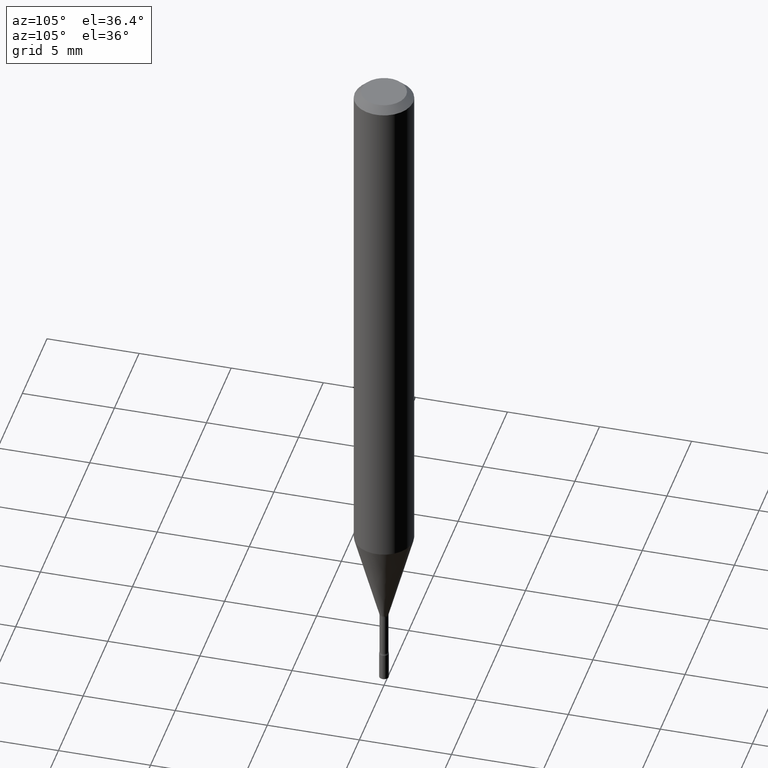
[diagram: clean part render]
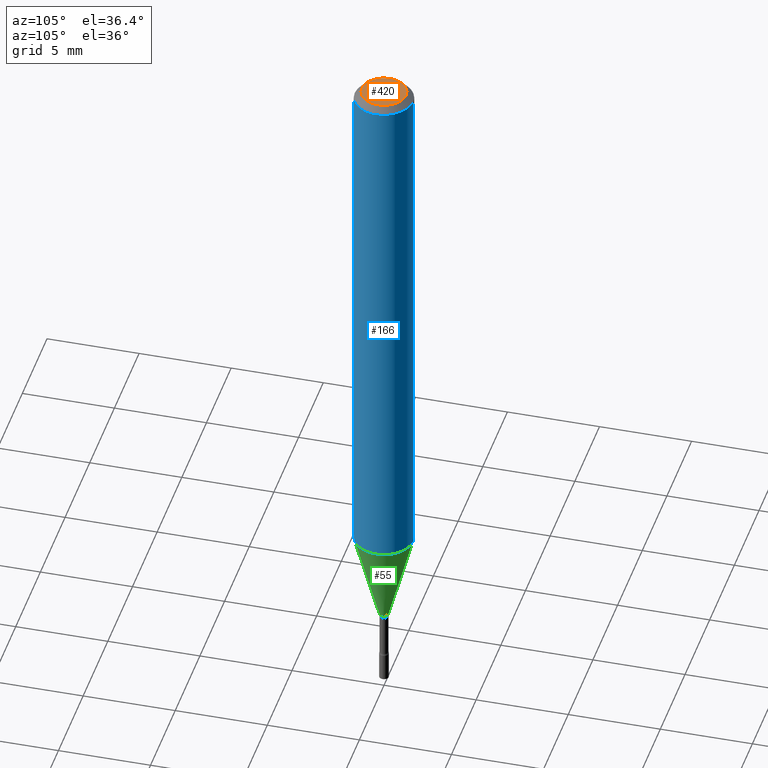
[diagram: same view with three faces highlighted in distinct colors, each labeled with its STEP entity id]
A machine part, auxiliary view with three faces highlighted in distinct colors.
Their STEP definitions:

[orange] entity #420 — the highlighted planar face has unit normal (0, -0, -1).
#23 = DIRECTION ( 'NONE',  ( -6.982962677686266711E-15, -1.000000000000000000, 3.491625398875051946E-15 ) ) ;
#42 = ORIENTED_EDGE ( 'NONE', *, *, #304, .T. ) ;
#63 = AXIS2_PLACEMENT_3D ( 'NONE', #263, #493, #23 ) ;
#73 = FACE_OUTER_BOUND ( 'NONE', #414, .T. ) ;
#105 = VERTEX_POINT ( 'NONE', #453 ) ;
#123 = PLANE ( 'NONE',  #162 ) ;
#136 = CARTESIAN_POINT ( 'NONE',  ( -3.773273898774340269E-16, -0.04749999999999999362, 1.369451383702114461E-16 ) ) ;
#162 = AXIS2_PLACEMENT_3D ( 'NONE', #506, #321, #164 ) ;
#164 = DIRECTION ( 'NONE',  ( 6.982962677686265922E-15, 1.000000000000000000, -3.491625398875051552E-15 ) ) ;
#180 = AXIS2_PLACEMENT_3D ( 'NONE', #279, #199, #354 ) ;
#182 = VERTEX_POINT ( 'NONE', #136 ) ;
#199 = DIRECTION ( 'NONE',  ( -2.445368209602522272E-29, 3.491625398875051552E-15, 1.000000000000000000 ) ) ;
#201 = CIRCLE ( 'NONE', #63, 0.04749999999999999362 ) ;
#263 = CARTESIAN_POINT ( 'NONE',  ( 7.068842530673074926E-46, -1.009326531024059951E-31, -2.890706807635348289E-17 ) ) ;
#279 = CARTESIAN_POINT ( 'NONE',  ( 7.068842530673074926E-46, -1.009326531024059951E-31, -2.890706807635348289E-17 ) ) ;
#304 = EDGE_CURVE ( 'NONE', #105, #182, #201, .T. ) ;
#321 = DIRECTION ( 'NONE',  ( 2.445368209602521711E-29, -3.491625398875051552E-15, -1.000000000000000000 ) ) ;
#354 = DIRECTION ( 'NONE',  ( -6.982962677686266711E-15, -1.000000000000000000, 3.491625398875051946E-15 ) ) ;
#397 = ORIENTED_EDGE ( 'NONE', *, *, #504, .T. ) ;
#414 = EDGE_LOOP ( 'NONE', ( #42, #397 ) ) ;
#420 = ADVANCED_FACE ( 'NONE', ( #73 ), #123, .F. ) ;
#449 = CIRCLE ( 'NONE', #180, 0.04749999999999999362 ) ;
#453 = CARTESIAN_POINT ( 'NONE',  ( 3.840629472727447874E-16, 0.04749999999999999362, -1.947592745229184365E-16 ) ) ;
#493 = DIRECTION ( 'NONE',  ( -2.445368209602522272E-29, 3.491625398875051552E-15, 1.000000000000000000 ) ) ;
#504 = EDGE_CURVE ( 'NONE', #182, #105, #449, .T. ) ;
#506 = CARTESIAN_POINT ( 'NONE',  ( 3.316907271900976096E-16, 0.04749999999999999362, -1.803057404847416581E-16 ) ) ;

[blue] entity #166 — the highlighted cylindrical surface (edge-blend (fillet) strip) has radius 1.5875 mm, axis along (-0, 0, 1).
#2 = EDGE_CURVE ( 'NONE', #483, #94, #250, .T. ) ;
#3 = FACE_OUTER_BOUND ( 'NONE', #416, .T. ) ;
#94 = VERTEX_POINT ( 'NONE', #97 ) ;
#97 = CARTESIAN_POINT ( 'NONE',  ( 4.440892098500906207E-16, 0.06249999999999993755, -0.01500000000000024751 ) ) ;
#100 = DIRECTION ( 'NONE',  ( -6.982962677686265922E-15, -1.000000000000000000, 3.483106191921935554E-15 ) ) ;
#116 = EDGE_CURVE ( 'NONE', #171, #94, #255, .T. ) ;
#141 = DIRECTION ( 'NONE',  ( -2.445368209602522272E-29, 3.491625398875051552E-15, 1.000000000000000000 ) ) ;
#166 = ADVANCED_FACE ( 'NONE', ( #3 ), #484, .T. ) ;
#171 = VERTEX_POINT ( 'NONE', #372 ) ;
#174 = VERTEX_POINT ( 'NONE', #447 ) ;
#176 = ORIENTED_EDGE ( 'NONE', *, *, #2, .F. ) ;
#205 = CARTESIAN_POINT ( 'NONE',  ( -4.364351673553916201E-16, -0.06250000000000000000, 2.182265874296907220E-16 ) ) ;
#217 = DIRECTION ( 'NONE',  ( -6.982962677686265922E-15, -1.000000000000000000, 3.491625398875051552E-15 ) ) ;
#238 = DIRECTION ( 'NONE',  ( -2.445368209602522272E-29, 3.491625398875051552E-15, 1.000000000000000000 ) ) ;
#243 = ORIENTED_EDGE ( 'NONE', *, *, #116, .T. ) ;
#248 = DIRECTION ( 'NONE',  ( -2.445368209602522272E-29, 3.491625398875051552E-15, 1.000000000000000000 ) ) ;
#250 = CIRCLE ( 'NONE', #353, 0.06250000000000000000 ) ;
#255 = LINE ( 'NONE', #330, #423 ) ;
#262 = ORIENTED_EDGE ( 'NONE', *, *, #281, .T. ) ;
#281 = EDGE_CURVE ( 'NONE', #174, #171, #292, .T. ) ;
#292 = CIRCLE ( 'NONE', #308, 0.06250000000000000000 ) ;
#308 = AXIS2_PLACEMENT_3D ( 'NONE', #495, #500, #345 ) ;
#317 = VECTOR ( 'NONE', #238, 39.37007874015748143 ) ;
#330 = CARTESIAN_POINT ( 'NONE',  ( 4.440892098500625669E-16, 0.06250000000000000000, -2.182265874296907220E-16 ) ) ;
#345 = DIRECTION ( 'NONE',  ( -6.982962677686265922E-15, -1.000000000000000000, 4.370956789862821150E-15 ) ) ;
#353 = AXIS2_PLACEMENT_3D ( 'NONE', #492, #141, #100 ) ;
#358 = LINE ( 'NONE', #205, #317 ) ;
#372 = CARTESIAN_POINT ( 'NONE',  ( 4.440892098500904235E-16, 0.06249999999999601014, -1.141828102118093602 ) ) ;
#394 = CARTESIAN_POINT ( 'NONE',  ( -4.364351673553912750E-16, -0.06250000000000005551, -0.01499999999999981209 ) ) ;
#413 = CARTESIAN_POINT ( 'NONE',  ( 0.000000000000000000, 0.000000000000000000, 0.000000000000000000 ) ) ;
#416 = EDGE_LOOP ( 'NONE', ( #262, #243, #176, #424 ) ) ;
#423 = VECTOR ( 'NONE', #445, 39.37007874015748143 ) ;
#424 = ORIENTED_EDGE ( 'NONE', *, *, #491, .F. ) ;
#445 = DIRECTION ( 'NONE',  ( -2.445368209602522272E-29, 3.491625398875051552E-15, 1.000000000000000000 ) ) ;
#447 = CARTESIAN_POINT ( 'NONE',  ( -4.364351673553637635E-16, -0.06250000000000399680, -1.141828102118092936 ) ) ;
#483 = VERTEX_POINT ( 'NONE', #394 ) ;
#484 = CYLINDRICAL_SURFACE ( 'NONE', #496, 0.06250000000000000000 ) ;
#491 = EDGE_CURVE ( 'NONE', #174, #483, #358, .T. ) ;
#492 = CARTESIAN_POINT ( 'NONE',  ( 3.668052314403790151E-31, -5.237438098312587928E-17, -0.01500000000000003067 ) ) ;
#495 = CARTESIAN_POINT ( 'NONE',  ( 2.792190141750367588E-29, -3.986836002504830436E-15, -1.141828102118093380 ) ) ;
#496 = AXIS2_PLACEMENT_3D ( 'NONE', #413, #248, #217 ) ;
#500 = DIRECTION ( 'NONE',  ( -2.445368209602522272E-29, 3.491625398875051552E-15, 1.000000000000000000 ) ) ;

[green] entity #55 — the highlighted conical surface has half-angle 15 deg.
#12 = EDGE_CURVE ( 'NONE', #271, #313, #343, .T. ) ;
#17 = EDGE_LOOP ( 'NONE', ( #192, #326, #440, #382 ) ) ;
#18 = FACE_OUTER_BOUND ( 'NONE', #17, .T. ) ;
#28 = LINE ( 'NONE', #72, #301 ) ;
#55 = ADVANCED_FACE ( 'NONE', ( #18 ), #119, .T. ) ;
#61 = DIRECTION ( 'NONE',  ( -6.982962677686264344E-15, -1.000000000000000000, 0.000000000000000000 ) ) ;
#72 = CARTESIAN_POINT ( 'NONE',  ( -6.920892941966473990E-17, -0.009911112605668655554, -1.338092501787273347 ) ) ;
#103 = CARTESIAN_POINT ( 'NONE',  ( -6.920892941966473990E-17, -0.009911112605668655554, -1.338092501787273347 ) ) ;
#119 = CONICAL_SURFACE ( 'NONE', #518, 0.009911112605663983943, 0.2617993877991500740 ) ;
#148 = CARTESIAN_POINT ( 'NONE',  ( 7.042269065258173483E-17, 0.009911112605659312333, -1.338092501787273347 ) ) ;
#171 = VERTEX_POINT ( 'NONE', #372 ) ;
#174 = VERTEX_POINT ( 'NONE', #447 ) ;
#187 = DIRECTION ( 'NONE',  ( -2.445368209602522272E-29, 3.491625398875051552E-15, 1.000000000000000000 ) ) ;
#190 = CARTESIAN_POINT ( 'NONE',  ( 3.272128865378104178E-29, -4.672117765284703339E-15, -1.338092501787273347 ) ) ;
#192 = ORIENTED_EDGE ( 'NONE', *, *, #12, .T. ) ;
#259 = CARTESIAN_POINT ( 'NONE',  ( 3.272128865378104178E-29, -4.672117765284703339E-15, -1.338092501787273347 ) ) ;
#271 = VERTEX_POINT ( 'NONE', #103 ) ;
#281 = EDGE_CURVE ( 'NONE', #174, #171, #292, .T. ) ;
#292 = CIRCLE ( 'NONE', #308, 0.06250000000000000000 ) ;
#298 = DIRECTION ( 'NONE',  ( 1.839019923739598738E-15, 0.2588190451025247363, 0.9659258262890673130 ) ) ;
#300 = AXIS2_PLACEMENT_3D ( 'NONE', #259, #187, #340 ) ;
#301 = VECTOR ( 'NONE', #436, 39.37007874015748854 ) ;
#308 = AXIS2_PLACEMENT_3D ( 'NONE', #495, #500, #345 ) ;
#313 = VERTEX_POINT ( 'NONE', #390 ) ;
#326 = ORIENTED_EDGE ( 'NONE', *, *, #337, .T. ) ;
#337 = EDGE_CURVE ( 'NONE', #313, #171, #498, .T. ) ;
#340 = DIRECTION ( 'NONE',  ( -6.982962677686264344E-15, -1.000000000000000000, 0.000000000000000000 ) ) ;
#343 = CIRCLE ( 'NONE', #300, 0.009911112605663983943 ) ;
#345 = DIRECTION ( 'NONE',  ( -6.982962677686265922E-15, -1.000000000000000000, 4.370956789862821150E-15 ) ) ;
#372 = CARTESIAN_POINT ( 'NONE',  ( 4.440892098500904235E-16, 0.06249999999999601014, -1.141828102118093602 ) ) ;
#382 = ORIENTED_EDGE ( 'NONE', *, *, #472, .F. ) ;
#390 = CARTESIAN_POINT ( 'NONE',  ( 2.572559502513362641E-16, 0.009911112605659312333, -1.338092501787273347 ) ) ;
#399 = VECTOR ( 'NONE', #298, 39.37007874015748854 ) ;
#436 = DIRECTION ( 'NONE',  ( -1.807323732225328562E-15, -0.2588190451025179639, 0.9659258262890690894 ) ) ;
#440 = ORIENTED_EDGE ( 'NONE', *, *, #281, .F. ) ;
#447 = CARTESIAN_POINT ( 'NONE',  ( -4.364351673553637635E-16, -0.06250000000000399680, -1.141828102118092936 ) ) ;
#459 = DIRECTION ( 'NONE',  ( -2.445368209602522272E-29, 3.491625398875051552E-15, 1.000000000000000000 ) ) ;
#472 = EDGE_CURVE ( 'NONE', #271, #174, #28, .T. ) ;
#495 = CARTESIAN_POINT ( 'NONE',  ( 2.792190141750367588E-29, -3.986836002504830436E-15, -1.141828102118093380 ) ) ;
#498 = LINE ( 'NONE', #148, #399 ) ;
#500 = DIRECTION ( 'NONE',  ( -2.445368209602522272E-29, 3.491625398875051552E-15, 1.000000000000000000 ) ) ;
#518 = AXIS2_PLACEMENT_3D ( 'NONE', #190, #459, #61 ) ;